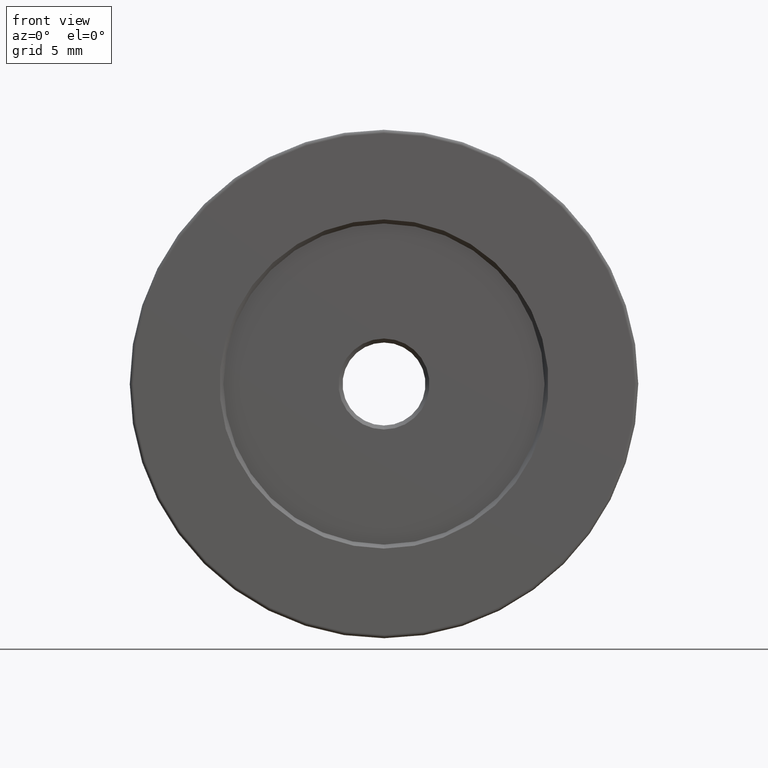
[diagram: clean part render]
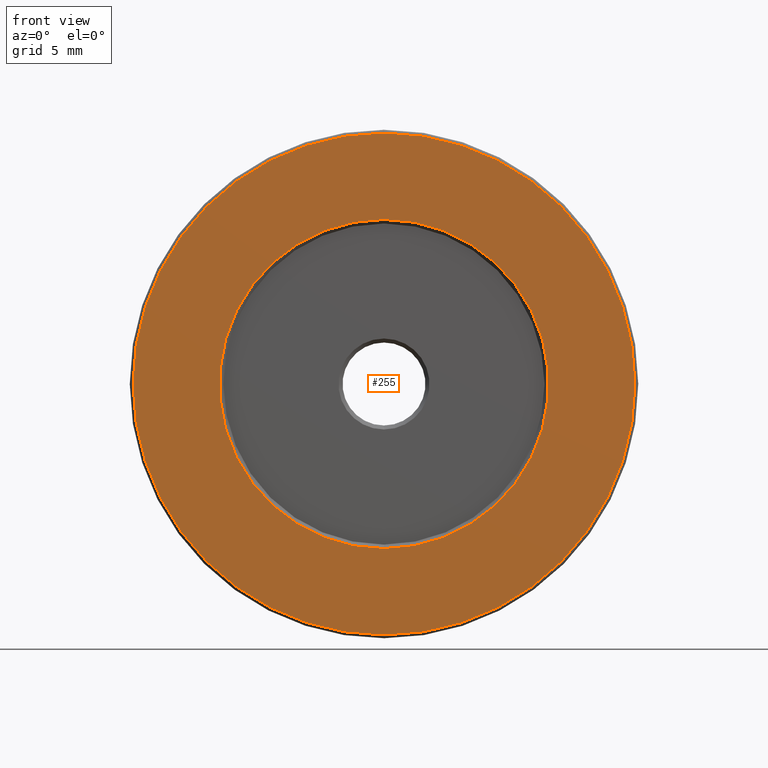
[diagram: same view with one face highlighted and labeled with its STEP entity id]
A machine part, front view. The second image highlights one B-rep face of the part: STEP entity #255.
In plain terms, the highlighted planar face has unit normal (0, 1, 0).
Its self-contained STEP definition (entity closure, byte-faithful):
#18 = ORIENTED_EDGE ( 'NONE', *, *, #512, .T. ) ;
#30 = AXIS2_PLACEMENT_3D ( 'NONE', #576, #530, #442 ) ;
#46 = EDGE_CURVE ( 'NONE', #266, #286, #235, .T. ) ;
#60 = AXIS2_PLACEMENT_3D ( 'NONE', #552, #462, #182 ) ;
#63 = VERTEX_POINT ( 'NONE', #571 ) ;
#93 = EDGE_LOOP ( 'NONE', ( #220, #18 ) ) ;
#106 = EDGE_CURVE ( 'NONE', #155, #63, #428, .T. ) ;
#122 = ORIENTED_EDGE ( 'NONE', *, *, #245, .T. ) ;
#128 = DIRECTION ( 'NONE',  ( 0.000000000000000000, 0.000000000000000000, 1.000000000000000000 ) ) ;
#131 = DIRECTION ( 'NONE',  ( -0.000000000000000000, -1.000000000000000000, -0.000000000000000000 ) ) ;
#155 = VERTEX_POINT ( 'NONE', #408 ) ;
#159 = CIRCLE ( 'NONE', #457, 12.29999999999999183 ) ;
#181 = PLANE ( 'NONE',  #612 ) ;
#182 = DIRECTION ( 'NONE',  ( 0.000000000000000000, 0.000000000000000000, 1.000000000000000000 ) ) ;
#219 = DIRECTION ( 'NONE',  ( 0.000000000000000000, -0.000000000000000000, 1.000000000000000000 ) ) ;
#220 = ORIENTED_EDGE ( 'NONE', *, *, #46, .T. ) ;
#226 = CARTESIAN_POINT ( 'NONE',  ( -7.546808913101048510, -7.893595127302726944, 38.00000000000000000 ) ) ;
#235 = CIRCLE ( 'NONE', #60, 12.29999999999999183 ) ;
#245 = EDGE_CURVE ( 'NONE', #63, #155, #338, .T. ) ;
#255 = ADVANCED_FACE ( 'NONE', ( #276, #323 ), #181, .F. ) ;
#266 = VERTEX_POINT ( 'NONE', #602 ) ;
#276 = FACE_OUTER_BOUND ( 'NONE', #592, .T. ) ;
#286 = VERTEX_POINT ( 'NONE', #498 ) ;
#319 = CARTESIAN_POINT ( 'NONE',  ( -7.546808913101048510, -7.893595127302726944, 38.00000000000000000 ) ) ;
#323 = FACE_BOUND ( 'NONE', #93, .T. ) ;
#338 = CIRCLE ( 'NONE', #460, 18.74999999999999645 ) ;
#366 = DIRECTION ( 'NONE',  ( 0.000000000000000000, 1.000000000000000000, 0.000000000000000000 ) ) ;
#372 = DIRECTION ( 'NONE',  ( 0.000000000000000000, 0.000000000000000000, 1.000000000000000000 ) ) ;
#408 = CARTESIAN_POINT ( 'NONE',  ( -7.546808913101045846, -7.893595127302726944, 19.25000000000000000 ) ) ;
#428 = CIRCLE ( 'NONE', #30, 18.74999999999999645 ) ;
#442 = DIRECTION ( 'NONE',  ( 0.000000000000000000, 0.000000000000000000, 1.000000000000000000 ) ) ;
#457 = AXIS2_PLACEMENT_3D ( 'NONE', #509, #596, #372 ) ;
#460 = AXIS2_PLACEMENT_3D ( 'NONE', #319, #131, #128 ) ;
#462 = DIRECTION ( 'NONE',  ( 0.000000000000000000, 1.000000000000000000, 0.000000000000000000 ) ) ;
#498 = CARTESIAN_POINT ( 'NONE',  ( -7.546808913101046734, -7.893595127302726944, 50.29999999999999005 ) ) ;
#509 = CARTESIAN_POINT ( 'NONE',  ( -7.546808913101048510, -7.893595127302726944, 38.00000000000000000 ) ) ;
#512 = EDGE_CURVE ( 'NONE', #286, #266, #159, .T. ) ;
#513 = ORIENTED_EDGE ( 'NONE', *, *, #106, .T. ) ;
#530 = DIRECTION ( 'NONE',  ( -0.000000000000000000, -1.000000000000000000, -0.000000000000000000 ) ) ;
#552 = CARTESIAN_POINT ( 'NONE',  ( -7.546808913101048510, -7.893595127302726944, 38.00000000000000000 ) ) ;
#571 = CARTESIAN_POINT ( 'NONE',  ( -7.546808913101048510, -7.893595127302726944, 56.74999999999999289 ) ) ;
#576 = CARTESIAN_POINT ( 'NONE',  ( -7.546808913101048510, -7.893595127302726944, 38.00000000000000000 ) ) ;
#592 = EDGE_LOOP ( 'NONE', ( #122, #513 ) ) ;
#596 = DIRECTION ( 'NONE',  ( 0.000000000000000000, 1.000000000000000000, 0.000000000000000000 ) ) ;
#602 = CARTESIAN_POINT ( 'NONE',  ( -7.546808913101048510, -7.893595127302726944, 25.70000000000000639 ) ) ;
#612 = AXIS2_PLACEMENT_3D ( 'NONE', #226, #366, #219 ) ;